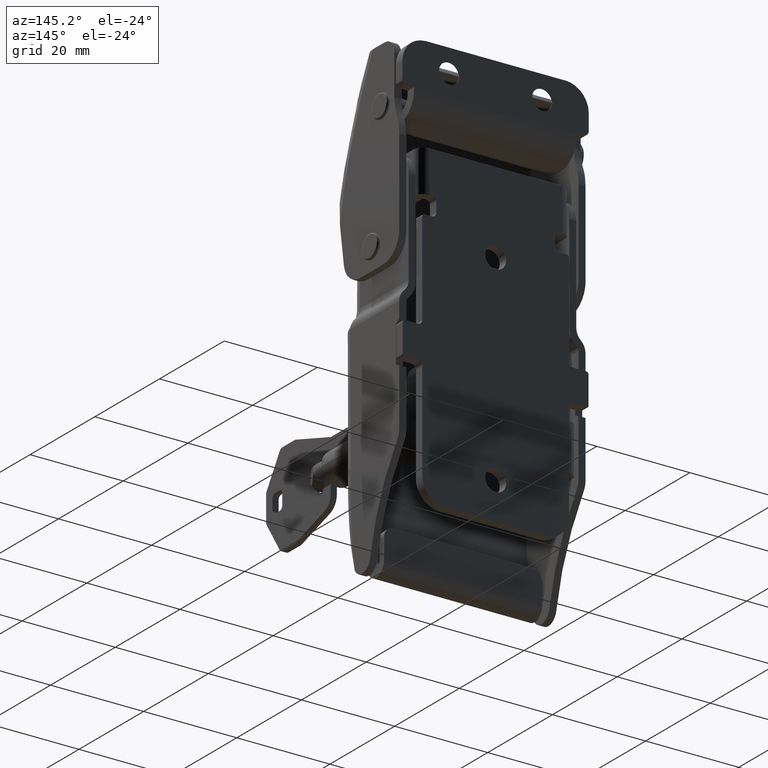
[diagram: clean part render]
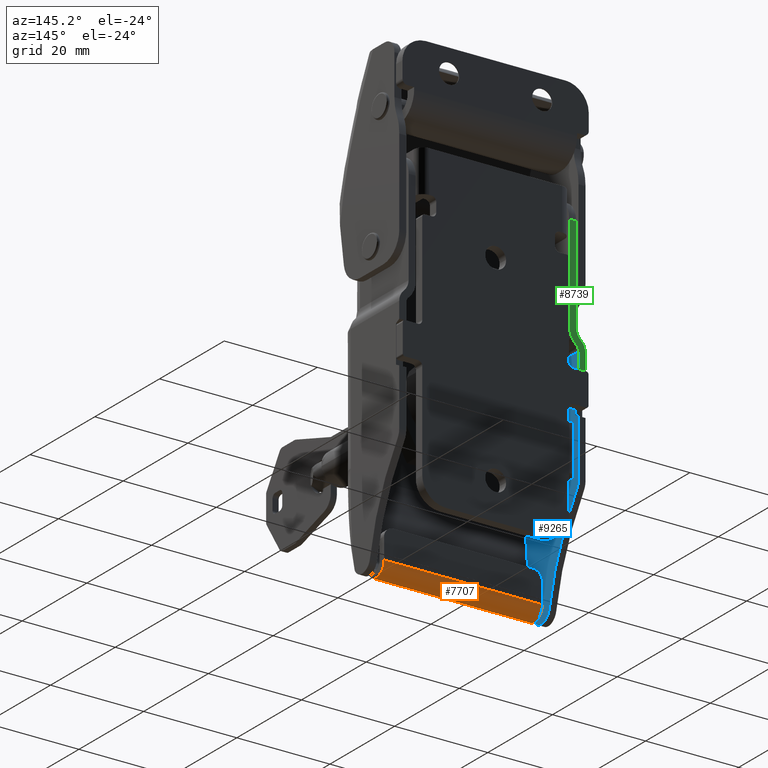
[diagram: same view with three faces highlighted in distinct colors, each labeled with its STEP entity id]
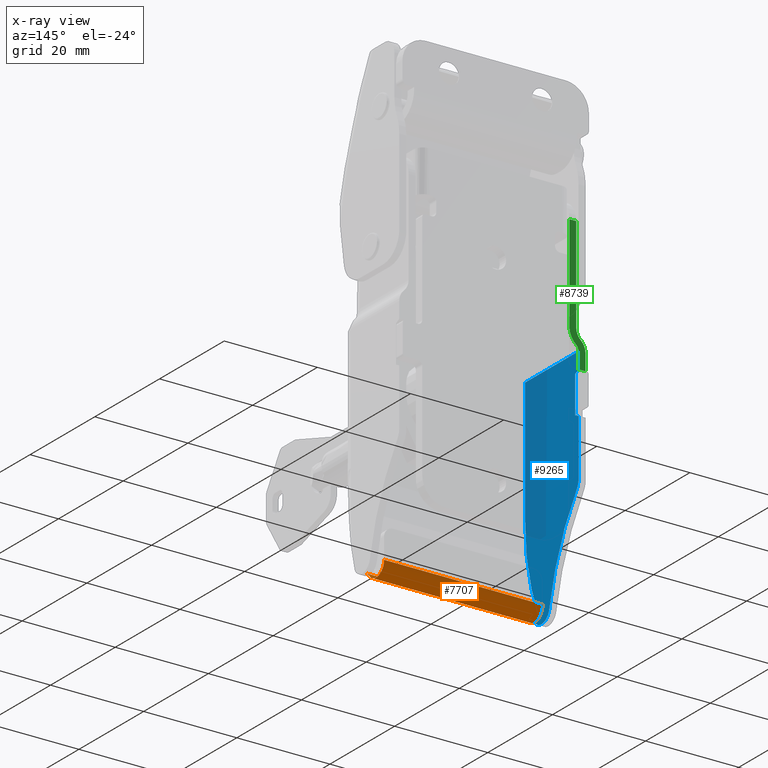
[diagram: x-ray of the same camera — body ghosted, the three highlighted faces saturated]
A machine part, auxiliary view with three faces highlighted in distinct colors.
The next image is the same camera in x-ray (body ghosted, the three faces saturated) — at least one of them is partly hidden behind the body in this view.
Their STEP definitions:

[orange] entity #7707 — the highlighted face is a freeform B-spline surface patch.
#7329=CARTESIAN_POINT('',(-17.000000000143551,-14.382774739631101,-60.644736842516998));
#7330=VERTEX_POINT('',#7329);
#7336=CARTESIAN_POINT('',(-17.750000000143501,-14.789473684203299,-60.004146528219202));
#7337=VERTEX_POINT('',#7336);
#7338=CARTESIAN_POINT('',(-17.750000000143501,-14.789473684203299,-60.004146528219202));
#7339=CARTESIAN_POINT('',(-17.700010502439479,-14.789473684203299,-60.004146528219209));
#7340=CARTESIAN_POINT('',(-17.650862937532331,-14.787499029034230,-60.008683390078772));
#7341=CARTESIAN_POINT('',(-17.578353291951991,-14.781580149753021,-60.021966495622877));
#7342=CARTESIAN_POINT('',(-17.554386889594401,-14.779108492951540,-60.027481043768823));
#7343=CARTESIAN_POINT('',(-17.506870771511391,-14.773096215954141,-60.040714375308639));
#7344=CARTESIAN_POINT('',(-17.483275664032661,-14.769540361863211,-60.048464682536043));
#7345=CARTESIAN_POINT('',(-17.414682998118568,-14.757396264132160,-60.074489964037653));
#7346=CARTESIAN_POINT('',(-17.371332085468900,-14.747297629812270,-60.095637245426019));
#7347=CARTESIAN_POINT('',(-17.309855173765001,-14.728672622249469,-60.132788703223142));
#7348=CARTESIAN_POINT('',(-17.289868344688820,-14.721843839985580,-60.146151934378338));
#7349=CARTESIAN_POINT('',(-17.251571759278828,-14.707041536592850,-60.174402810682267));
#7350=CARTESIAN_POINT('',(-17.233368236403610,-14.699117887573880,-60.189197232703130));
#7351=CARTESIAN_POINT('',(-17.181506976922179,-14.673685447005910,-60.235447182819051));
#7352=CARTESIAN_POINT('',(-17.150573620863671,-14.654531977920760,-60.268753463629977));
#7353=CARTESIAN_POINT('',(-17.109762451615879,-14.621854305952411,-60.322183857848273));
#7354=CARTESIAN_POINT('',(-17.097185167455919,-14.610354000038599,-60.340480752742756));
#7355=CARTESIAN_POINT('',(-17.074439107919002,-14.586470296703039,-60.377361374135063));
#7356=CARTESIAN_POINT('',(-17.053963822422780,-14.561596680458781,-60.414705135986203));
#7357=CARTESIAN_POINT('',(-17.037924701759831,-14.534644873769279,-60.452855050785779));
#7358=CARTESIAN_POINT('',(-17.024108666629878,-14.506588201923670,-60.491365598665233));
#7359=CARTESIAN_POINT('',(-17.018299987781781,-14.491941659208530,-60.510882673690013));
#7360=CARTESIAN_POINT('',(-17.004506663559329,-14.447036575532239,-60.568897918710221));
#7361=CARTESIAN_POINT('',(-17.000000000143501,-14.415657338983710,-60.607095241836703));
#7362=CARTESIAN_POINT('',(-17.000000000143501,-14.382774739631101,-60.644736842516998));
#7363=B_SPLINE_CURVE_WITH_KNOTS('',3,(#7338,#7339,#7340,#7341,#7342,#7343,#7344,#7345,#7346,#7347,#7348,#7349,#7350,#7351,#7352,#7353,#7354,#7355,#7356,#7357,#7358,#7359,#7360,#7361,#7362),.UNSPECIFIED.,.F.,.U.,(4,2,2,2,2,2,2,2,2,1,2,2,4),(0.0,0.124999999999994,0.187499999999997,0.250000000000000,0.375000000000014,0.437500000000013,0.500000000000013,0.625000000000007,0.687500000000006,0.750000000000005,0.812500000000005,0.875000000000004,1.0),.UNSPECIFIED.);
#7364=EDGE_CURVE('',#7337,#7330,#7363,.T.);
#7416=CARTESIAN_POINT('',(16.999999999856449,-14.382774739631101,-60.644736842516998));
#7417=VERTEX_POINT('',#7416);
#7488=CARTESIAN_POINT('',(17.749999999880352,-14.789473684203299,-60.004146528219202));
#7489=VERTEX_POINT('',#7488);
#7518=CARTESIAN_POINT('',(16.999999999856449,-14.382774739631101,-60.644736842516998));
#7519=CARTESIAN_POINT('',(16.999999999856449,-14.415647814637820,-60.607106144613027));
#7520=CARTESIAN_POINT('',(17.004505190864080,-14.446873523007500,-60.569086537129493));
#7521=CARTESIAN_POINT('',(17.018106369824611,-14.491388773420960,-60.511607760925230));
#7522=CARTESIAN_POINT('',(17.023787640758840,-14.505839016437280,-60.492373933309722));
#7523=CARTESIAN_POINT('',(17.037550445870771,-14.533977349369099,-60.453790307749237));
#7524=CARTESIAN_POINT('',(17.045665010242519,-14.547685317914800,-60.434404056637348));
#7525=CARTESIAN_POINT('',(17.073137935038631,-14.586793764759010,-60.377465939858240));
#7526=CARTESIAN_POINT('',(17.095729048254210,-14.610519012939699,-60.340682923776782));
#7527=CARTESIAN_POINT('',(17.136125958832618,-14.643011107810610,-60.287607740766887));
#7528=CARTESIAN_POINT('',(17.150762968057109,-14.653371264415130,-60.270185035889291));
#7529=CARTESIAN_POINT('',(17.181940236906470,-14.672861382514141,-60.236548114776269));
#7530=CARTESIAN_POINT('',(17.198385488070191,-14.681946215218330,-60.220418359370058));
#7531=CARTESIAN_POINT('',(17.250223896211640,-14.707415914140499,-60.174119249060134));
#7532=CARTESIAN_POINT('',(17.288095809037848,-14.722031554062310,-60.146019293507109));
#7533=CARTESIAN_POINT('',(17.370683160026250,-14.747148776411841,-60.095950192740688));
#7534=CARTESIAN_POINT('',(17.414339868666460,-14.757313817235319,-60.074662041040590));
#7535=CARTESIAN_POINT('',(17.482539487720310,-14.769420657828450,-60.048723472333450));
#7536=CARTESIAN_POINT('',(17.505765764893301,-14.772938060238809,-60.041059970817301));
#7537=CARTESIAN_POINT('',(17.553224598230749,-14.778978909222490,-60.027768660656839));
#7538=CARTESIAN_POINT('',(17.577537449056560,-14.781504602627621,-60.022135435109313));
#7539=CARTESIAN_POINT('',(17.650652724182400,-14.787499437261321,-60.008683657129197));
#7540=CARTESIAN_POINT('',(17.700013040232200,-14.789473684203260,-60.004146528219309));
#7541=CARTESIAN_POINT('',(17.749999999880352,-14.789473684203299,-60.004146528219202));
#7542=B_SPLINE_CURVE_WITH_KNOTS('',3,(#7518,#7519,#7520,#7521,#7522,#7523,#7524,#7525,#7526,#7527,#7528,#7529,#7530,#7531,#7532,#7533,#7534,#7535,#7536,#7537,#7538,#7539,#7540,#7541),.UNSPECIFIED.,.F.,.U.,(4,2,2,2,2,2,2,2,2,2,2,4),(0.0,0.124999999999995,0.187499999999992,0.249999999999990,0.374999999999998,0.437500000000002,0.500000000000006,0.625000000000003,0.750000000000000,0.812500000000002,0.875000000000003,1.0),.UNSPECIFIED.);
#7543=EDGE_CURVE('',#7417,#7489,#7542,.T.);
#7641=CARTESIAN_POINT('',(-18.637500000144090,-10.001812528519020,-58.904819343925467));
#7642=CARTESIAN_POINT('',(18.659687499880960,-10.001812528519020,-58.904819343925467));
#7643=CARTESIAN_POINT('',(-18.637500000144101,-9.919799627913465,-61.057395385716667));
#7644=CARTESIAN_POINT('',(18.659687499880953,-9.919799627913465,-61.057395385716667));
#7645=CARTESIAN_POINT('',(-18.637500000144090,-12.036609201794210,-61.456678442564737));
#7646=CARTESIAN_POINT('',(18.659687499880960,-12.036609201794210,-61.456678442564737));
#7647=CARTESIAN_POINT('',(-18.637500000144101,-14.153418775674965,-61.855961499412821));
#7648=CARTESIAN_POINT('',(18.659687499880953,-14.153418775674965,-61.855961499412821));
#7649=CARTESIAN_POINT('',(-18.637500000144090,-14.861200429458201,-59.821421044635130));
#7650=CARTESIAN_POINT('',(18.659687499880960,-14.861200429458201,-59.821421044635130));
#7658=(BOUNDED_SURFACE()B_SPLINE_SURFACE(1,2,((#7641,#7643,#7645,#7647,#7649),(#7642,#7644,#7646,#7648,#7650)),.UNSPECIFIED.,.F.,.F.,.U.)B_SPLINE_SURFACE_WITH_KNOTS((2,2),(3,2,3),(0.0,37.297187500025053),(0.0,3.714000667187200,7.428001334374400),.UNSPECIFIED.)GEOMETRIC_REPRESENTATION_ITEM()RATIONAL_B_SPLINE_SURFACE(((1.0,0.757564984384050,1.0,0.757564984384050,1.0),(1.0,0.757564984384050,1.0,0.757564984384050,1.0)))REPRESENTATION_ITEM('')SURFACE());
#7659=CARTESIAN_POINT('',(16.999999999856449,-9.999999999993289,-59.000000000410687));
#7660=VERTEX_POINT('',#7659);
#7661=CARTESIAN_POINT('',(16.999999999856449,-9.999999999993300,-59.000000000410687));
#7662=CARTESIAN_POINT('',(16.999999999856456,-9.999999999993300,-60.732058456661754));
#7663=CARTESIAN_POINT('',(16.999999999856449,-11.621631298676620,-61.340612831390487));
#7664=CARTESIAN_POINT('',(16.999999999856456,-13.243262597359935,-61.949167206119220));
#7665=CARTESIAN_POINT('',(16.999999999856449,-14.382774739631101,-60.644736842516998));
#7673=(BOUNDED_CURVE()B_SPLINE_CURVE(2,(#7661,#7662,#7663,#7664,#7665),.UNSPECIFIED.,.F.,.U.)B_SPLINE_CURVE_WITH_KNOTS((3,2,3),(0.0,0.500000000000000,1.0),.UNSPECIFIED.)CURVE()GEOMETRIC_REPRESENTATION_ITEM()RATIONAL_B_SPLINE_CURVE((1.0,0.821993759260577,1.0,0.821993759260577,1.0))REPRESENTATION_ITEM(''));
#7674=EDGE_CURVE('',#7660,#7417,#7673,.T.);
#7675=ORIENTED_EDGE('',*,*,#7674,.T.);
#7676=ORIENTED_EDGE('',*,*,#7543,.T.);
#7677=CARTESIAN_POINT('',(-17.750000000143501,-14.789473684203299,-60.004146528219202));
#7678=CARTESIAN_POINT('',(17.749999999880352,-14.789473684203299,-60.004146528219202));
#7679=QUASI_UNIFORM_CURVE('',1,(#7677,#7678),.UNSPECIFIED.,.F.,.U.);
#7680=EDGE_CURVE('',#7337,#7489,#7679,.T.);
#7681=ORIENTED_EDGE('',*,*,#7680,.F.);
#7682=ORIENTED_EDGE('',*,*,#7364,.T.);
#7683=CARTESIAN_POINT('',(-17.000000000143551,-9.999999999993289,-59.000000000410687));
#7684=VERTEX_POINT('',#7683);
#7685=CARTESIAN_POINT('',(-17.000000000143551,-9.999999999993300,-59.000000000410687));
#7686=CARTESIAN_POINT('',(-17.000000000143547,-9.999999999993300,-60.732058456661754));
#7687=CARTESIAN_POINT('',(-17.000000000143551,-11.621631298676620,-61.340612831390487));
#7688=CARTESIAN_POINT('',(-17.000000000143547,-13.243262597359935,-61.949167206119220));
#7689=CARTESIAN_POINT('',(-17.000000000143551,-14.382774739631101,-60.644736842516998));
#7697=(BOUNDED_CURVE()B_SPLINE_CURVE(2,(#7685,#7686,#7687,#7688,#7689),.UNSPECIFIED.,.F.,.U.)B_SPLINE_CURVE_WITH_KNOTS((3,2,3),(0.0,0.500000000000000,1.0),.UNSPECIFIED.)CURVE()GEOMETRIC_REPRESENTATION_ITEM()RATIONAL_B_SPLINE_CURVE((1.0,0.821993759260577,1.0,0.821993759260577,1.0))REPRESENTATION_ITEM(''));
#7698=EDGE_CURVE('',#7684,#7330,#7697,.T.);
#7699=ORIENTED_EDGE('',*,*,#7698,.F.);
#7700=CARTESIAN_POINT('',(-17.000000000143551,-9.999999999993289,-59.000000000410687));
#7701=CARTESIAN_POINT('',(16.999999999856449,-9.999999999993289,-59.000000000410687));
#7702=QUASI_UNIFORM_CURVE('',1,(#7700,#7701),.UNSPECIFIED.,.F.,.U.);
#7703=EDGE_CURVE('',#7684,#7660,#7702,.T.);
#7704=ORIENTED_EDGE('',*,*,#7703,.T.);
#7705=EDGE_LOOP('',(#7675,#7676,#7681,#7682,#7699,#7704));
#7706=FACE_OUTER_BOUND('',#7705,.T.);
#7707=ADVANCED_FACE('',(#7706),#7658,.T.);

[blue] entity #9265 — the highlighted face is a freeform B-spline surface patch.
#7265=CARTESIAN_POINT('',(-18.500000000068251,-13.109234562975720,-60.086171371669693));
#7266=VERTEX_POINT('',#7265);
#7267=CARTESIAN_POINT('',(-18.500000000068251,-14.382774739631101,-60.644736842516998));
#7268=VERTEX_POINT('',#7267);
#7269=CARTESIAN_POINT('',(-18.500000000068251,-13.109234562975720,-60.086171371669693));
#7270=CARTESIAN_POINT('',(-18.500000000068251,-14.382774739631101,-60.644736842516998));
#7271=QUASI_UNIFORM_CURVE('',1,(#7269,#7270),.UNSPECIFIED.,.F.,.U.);
#7272=EDGE_CURVE('',#7266,#7268,#7271,.T.);
#7963=CARTESIAN_POINT('',(-18.500000000031651,-1.000000000003110,-13.018624220187380));
#7964=VERTEX_POINT('',#7963);
#7965=CARTESIAN_POINT('',(-18.500000000031651,-17.500000000002949,-13.018624220186140));
#7966=VERTEX_POINT('',#7965);
#7967=CARTESIAN_POINT('',(-18.500000000031651,-1.000000000003110,-13.018624220187380));
#7968=CARTESIAN_POINT('',(-18.500000000031651,-17.500000000002949,-13.018624220186140));
#7969=QUASI_UNIFORM_CURVE('',1,(#7967,#7968),.UNSPECIFIED.,.F.,.U.);
#7970=EDGE_CURVE('',#7964,#7966,#7969,.T.);
#8018=CARTESIAN_POINT('',(-18.500000000068251,-17.500000000003201,-39.921215972049502));
#8019=VERTEX_POINT('',#8018);
#8041=CARTESIAN_POINT('',(-18.500000000068251,-13.109234562975709,-60.086171371669693));
#8042=CARTESIAN_POINT('',(-18.500000000068248,-17.500000000003208,-50.481721536065990));
#8043=CARTESIAN_POINT('',(-18.500000000068251,-17.500000000003212,-39.921215972049502));
#8051=(BOUNDED_CURVE()B_SPLINE_CURVE(2,(#8041,#8042,#8043),.UNSPECIFIED.,.F.,.U.)CURVE()GEOMETRIC_REPRESENTATION_ITEM()QUASI_UNIFORM_CURVE()RATIONAL_B_SPLINE_CURVE((1.0,0.977105100251688,1.0))REPRESENTATION_ITEM(''));
#8052=EDGE_CURVE('',#7266,#8019,#8051,.T.);
#8278=CARTESIAN_POINT('',(-18.500000000068251,-10.041072328296760,-59.451303341152602));
#8279=VERTEX_POINT('',#8278);
#8280=CARTESIAN_POINT('',(-18.500000000068251,-10.041072328296710,-59.451303341152610));
#8281=CARTESIAN_POINT('',(-18.500000000068248,-10.324340044626545,-60.994688384650523));
#8282=CARTESIAN_POINT('',(-18.500000000068251,-11.837384779201701,-61.410589361785902));
#8283=CARTESIAN_POINT('',(-18.500000000068248,-13.350429513776852,-61.826490338921268));
#8284=CARTESIAN_POINT('',(-18.500000000068251,-14.382774739631101,-60.644736842516998));
#8292=(BOUNDED_CURVE()B_SPLINE_CURVE(2,(#8280,#8281,#8282,#8283,#8284),.UNSPECIFIED.,.F.,.U.)B_SPLINE_CURVE_WITH_KNOTS((3,2,3),(0.0,0.500000000000000,1.0),.UNSPECIFIED.)CURVE()GEOMETRIC_REPRESENTATION_ITEM()RATIONAL_B_SPLINE_CURVE((1.0,0.846981932937762,1.0,0.846981932937762,1.0))REPRESENTATION_ITEM(''));
#8293=EDGE_CURVE('',#8279,#7268,#8292,.T.);
#8336=CARTESIAN_POINT('',(-18.500000000068251,-1.558255786476180,-39.428153319590500));
#8337=VERTEX_POINT('',#8336);
#8345=CARTESIAN_POINT('',(-18.500000000068251,-10.041072328296760,-59.451303341152617));
#8346=CARTESIAN_POINT('',(-18.500000000068248,-8.030149190184300,-48.494782297384369));
#8347=CARTESIAN_POINT('',(-18.500000000068251,-1.558255786476268,-39.428153319590400));
#8355=(BOUNDED_CURVE()B_SPLINE_CURVE(2,(#8345,#8346,#8347),.UNSPECIFIED.,.F.,.U.)CURVE()GEOMETRIC_REPRESENTATION_ITEM()QUASI_UNIFORM_CURVE()RATIONAL_B_SPLINE_CURVE((1.0,0.976069428203334,1.0))REPRESENTATION_ITEM(''));
#8356=EDGE_CURVE('',#8279,#8337,#8355,.T.);
#8389=CARTESIAN_POINT('',(-18.500000000068251,-1.000000000002900,-37.685200309406603));
#8390=VERTEX_POINT('',#8389);
#8391=CARTESIAN_POINT('',(-18.500000000068251,-1.000000000002900,-37.685200309406703));
#8392=CARTESIAN_POINT('',(-18.500000000068255,-1.000000000002900,-38.646079546904467));
#8393=CARTESIAN_POINT('',(-18.500000000068251,-1.558255786476180,-39.428153319590500));
#8401=(BOUNDED_CURVE()B_SPLINE_CURVE(2,(#8391,#8392,#8393),.UNSPECIFIED.,.F.,.U.)CURVE()GEOMETRIC_REPRESENTATION_ITEM()QUASI_UNIFORM_CURVE()RATIONAL_B_SPLINE_CURVE((1.0,0.952343094121609,1.0))REPRESENTATION_ITEM(''));
#8402=EDGE_CURVE('',#8390,#8337,#8401,.T.);
#8433=CARTESIAN_POINT('',(-18.500000000068251,-1.000000000003212,-25.500000000312401));
#8434=VERTEX_POINT('',#8433);
#8435=CARTESIAN_POINT('',(-18.500000000068251,-1.000000000003212,-25.500000000312401));
#8436=CARTESIAN_POINT('',(-18.500000000068251,-1.000000000002900,-37.685200309406603));
#8437=QUASI_UNIFORM_CURVE('',1,(#8435,#8436),.UNSPECIFIED.,.F.,.U.);
#8438=EDGE_CURVE('',#8434,#8390,#8437,.T.);
#8461=CARTESIAN_POINT('',(-18.500000000068251,-2.000000000002900,-25.000000000312699));
#8462=VERTEX_POINT('',#8461);
#8463=CARTESIAN_POINT('',(-18.500000000068251,-2.000000000002900,-25.000000000312699));
#8464=CARTESIAN_POINT('',(-18.500000000068251,-1.000000000003212,-25.500000000312401));
#8465=QUASI_UNIFORM_CURVE('',1,(#8463,#8464),.UNSPECIFIED.,.F.,.U.);
#8466=EDGE_CURVE('',#8462,#8434,#8465,.T.);
#8489=CARTESIAN_POINT('',(-18.500000000068251,-2.000000000003100,-17.000000000414101));
#8490=VERTEX_POINT('',#8489);
#8491=CARTESIAN_POINT('',(-18.500000000068251,-2.000000000003100,-17.000000000414101));
#8492=CARTESIAN_POINT('',(-18.500000000068251,-2.000000000002900,-25.000000000312699));
#8493=QUASI_UNIFORM_CURVE('',1,(#8491,#8492),.UNSPECIFIED.,.F.,.U.);
#8494=EDGE_CURVE('',#8490,#8462,#8493,.T.);
#8517=CARTESIAN_POINT('',(-18.500000000068251,-1.000000000003098,-16.500000000414200));
#8518=VERTEX_POINT('',#8517);
#8519=CARTESIAN_POINT('',(-18.500000000068251,-1.000000000003098,-16.500000000414200));
#8520=CARTESIAN_POINT('',(-18.500000000068251,-2.000000000003100,-17.000000000414101));
#8521=QUASI_UNIFORM_CURVE('',1,(#8519,#8520),.UNSPECIFIED.,.F.,.U.);
#8522=EDGE_CURVE('',#8518,#8490,#8521,.T.);
#8707=CARTESIAN_POINT('',(-18.500000000031651,-1.000000000003110,-13.018624220187380));
#8708=CARTESIAN_POINT('',(-18.500000000068251,-1.000000000003098,-16.500000000414200));
#8709=QUASI_UNIFORM_CURVE('',1,(#8707,#8708),.UNSPECIFIED.,.F.,.U.);
#8710=EDGE_CURVE('',#7964,#8518,#8709,.T.);
#9242=CARTESIAN_POINT('',(-18.500000000068251,-0.175825031983087,-10.597038425688430));
#9243=CARTESIAN_POINT('',(-18.500000000068258,-18.324175410587500,-10.597038425688430));
#9244=CARTESIAN_POINT('',(-18.500000000068251,-0.175825031983087,-63.920409282144178));
#9245=CARTESIAN_POINT('',(-18.500000000068258,-18.324175410587500,-63.920409282144178));
#9246=B_SPLINE_SURFACE_WITH_KNOTS('',1,1,((#9242,#9244),(#9243,#9245)),.UNSPECIFIED.,.F.,.F.,.U.,(2,2),(2,2),(0.0,18.148350378604409),(0.0,53.323370856455753),.UNSPECIFIED.);
#9247=ORIENTED_EDGE('',*,*,#8052,.F.);
#9248=ORIENTED_EDGE('',*,*,#7272,.T.);
#9249=ORIENTED_EDGE('',*,*,#8293,.F.);
#9250=ORIENTED_EDGE('',*,*,#8356,.T.);
#9251=ORIENTED_EDGE('',*,*,#8402,.F.);
#9252=ORIENTED_EDGE('',*,*,#8438,.F.);
#9253=ORIENTED_EDGE('',*,*,#8466,.F.);
#9254=ORIENTED_EDGE('',*,*,#8494,.F.);
#9255=ORIENTED_EDGE('',*,*,#8522,.F.);
#9256=ORIENTED_EDGE('',*,*,#8710,.F.);
#9257=ORIENTED_EDGE('',*,*,#7970,.T.);
#9258=CARTESIAN_POINT('',(-18.500000000068251,-17.500000000003201,-39.921215972049502));
#9259=CARTESIAN_POINT('',(-18.500000000031651,-17.500000000002949,-13.018624220186140));
#9260=QUASI_UNIFORM_CURVE('',1,(#9258,#9259),.UNSPECIFIED.,.F.,.U.);
#9261=EDGE_CURVE('',#8019,#7966,#9260,.T.);
#9262=ORIENTED_EDGE('',*,*,#9261,.F.);
#9263=EDGE_LOOP('',(#9247,#9248,#9249,#9250,#9251,#9252,#9253,#9254,#9255,#9256,#9257,#9262));
#9264=FACE_OUTER_BOUND('',#9263,.T.);
#9265=ADVANCED_FACE('',(#9264),#9246,.T.);

[green] entity #8739 — the highlighted face is a freeform B-spline surface patch.
#7902=CARTESIAN_POINT('',(-16.500000000030301,-1.000000000003110,-8.546488265193421));
#7903=VERTEX_POINT('',#7902);
#7904=CARTESIAN_POINT('',(-18.000000000029999,-1.000000000003110,-11.900590231436221));
#7905=VERTEX_POINT('',#7904);
#7906=CARTESIAN_POINT('',(-16.500000000030301,-1.000000000003110,-8.546488265193421));
#7907=CARTESIAN_POINT('',(-16.500000000030298,-1.000000000003110,-10.558949444940344));
#7908=CARTESIAN_POINT('',(-18.000000000029999,-1.000000000003110,-11.900590231436221));
#7916=(BOUNDED_CURVE()B_SPLINE_CURVE(2,(#7906,#7907,#7908),.UNSPECIFIED.,.F.,.U.)CURVE()GEOMETRIC_REPRESENTATION_ITEM()QUASI_UNIFORM_CURVE()RATIONAL_B_SPLINE_CURVE((1.0,0.912870929175495,1.0))REPRESENTATION_ITEM(''));
#7917=EDGE_CURVE('',#7903,#7905,#7916,.T.);
#7963=CARTESIAN_POINT('',(-18.500000000031651,-1.000000000003110,-13.018624220187380));
#7964=VERTEX_POINT('',#7963);
#7972=CARTESIAN_POINT('',(-18.500000000031651,-1.000000000003110,-13.018624220187380));
#7973=CARTESIAN_POINT('',(-18.500000000031648,-1.000000000003110,-12.347803826936197));
#7974=CARTESIAN_POINT('',(-18.000000000029999,-1.000000000003110,-11.900590231436221));
#7982=(BOUNDED_CURVE()B_SPLINE_CURVE(2,(#7972,#7973,#7974),.UNSPECIFIED.,.F.,.U.)CURVE()GEOMETRIC_REPRESENTATION_ITEM()QUASI_UNIFORM_CURVE()RATIONAL_B_SPLINE_CURVE((1.0,0.912870929174995,1.0))REPRESENTATION_ITEM(''));
#7983=EDGE_CURVE('',#7964,#7905,#7982,.T.);
#8155=CARTESIAN_POINT('',(-19.000000000028450,-1.000000000003110,-10.782556242684940));
#8156=VERTEX_POINT('',#8155);
#8163=CARTESIAN_POINT('',(-18.000000000030351,-1.000000000003110,-8.546488265189790));
#8164=VERTEX_POINT('',#8163);
#8170=CARTESIAN_POINT('',(-18.000000000030351,-1.000000000003110,-8.546488265189790));
#8171=CARTESIAN_POINT('',(-18.000000000028670,-1.000000000003110,-9.888129051687711));
#8172=CARTESIAN_POINT('',(-19.000000000028450,-1.000000000003110,-10.782556242684940));
#8180=(BOUNDED_CURVE()B_SPLINE_CURVE(2,(#8170,#8171,#8172),.UNSPECIFIED.,.F.,.U.)CURVE()GEOMETRIC_REPRESENTATION_ITEM()QUASI_UNIFORM_CURVE()RATIONAL_B_SPLINE_CURVE((1.0,0.912870929175498,1.0))REPRESENTATION_ITEM(''));
#8181=EDGE_CURVE('',#8164,#8156,#8180,.T.);
#8200=CARTESIAN_POINT('',(-20.000000000068251,-1.000000000003098,-13.018624220187380));
#8201=VERTEX_POINT('',#8200);
#8209=CARTESIAN_POINT('',(-20.000000000068251,-1.000000000003098,-13.018624220187380));
#8210=CARTESIAN_POINT('',(-20.000000000031648,-1.000000000003110,-11.676983433685020));
#8211=CARTESIAN_POINT('',(-19.000000000028450,-1.000000000003110,-10.782556242684940));
#8219=(BOUNDED_CURVE()B_SPLINE_CURVE(2,(#8209,#8210,#8211),.UNSPECIFIED.,.F.,.U.)CURVE()GEOMETRIC_REPRESENTATION_ITEM()QUASI_UNIFORM_CURVE()RATIONAL_B_SPLINE_CURVE((1.0,0.912870929174994,1.0))REPRESENTATION_ITEM(''));
#8220=EDGE_CURVE('',#8201,#8156,#8219,.T.);
#8517=CARTESIAN_POINT('',(-18.500000000068251,-1.000000000003098,-16.500000000414200));
#8518=VERTEX_POINT('',#8517);
#8525=CARTESIAN_POINT('',(-20.000000000068201,-1.000000000003098,-16.500000000414200));
#8526=VERTEX_POINT('',#8525);
#8532=CARTESIAN_POINT('',(-18.500000000068251,-1.000000000003098,-16.500000000414200));
#8533=CARTESIAN_POINT('',(-20.000000000068201,-1.000000000003098,-16.500000000414200));
#8534=QUASI_UNIFORM_CURVE('',1,(#8532,#8533),.UNSPECIFIED.,.F.,.U.);
#8535=EDGE_CURVE('',#8518,#8526,#8534,.T.);
#8549=CARTESIAN_POINT('',(-20.000000000068251,-1.000000000003098,-13.018624220187380));
#8550=CARTESIAN_POINT('',(-20.000000000068201,-1.000000000003098,-16.500000000414200));
#8551=QUASI_UNIFORM_CURVE('',1,(#8549,#8550),.UNSPECIFIED.,.F.,.U.);
#8552=EDGE_CURVE('',#8201,#8526,#8551,.T.);
#8702=CARTESIAN_POINT('',(-20.174824993288951,-1.000000000003098,-17.923574945175680));
#8703=CARTESIAN_POINT('',(-20.174824993288951,-1.000000000003098,13.423575708777030));
#8704=CARTESIAN_POINT('',(-16.325174912882641,-1.000000000003098,-17.923574945175680));
#8705=CARTESIAN_POINT('',(-16.325174912882641,-1.000000000003098,13.423575708777030));
#8706=B_SPLINE_SURFACE_WITH_KNOTS('',1,1,((#8702,#8704),(#8703,#8705)),.UNSPECIFIED.,.F.,.F.,.U.,(2,2),(2,2),(0.0,31.347150653952710),(0.0,3.849650080406306),.UNSPECIFIED.);
#8707=CARTESIAN_POINT('',(-18.500000000031651,-1.000000000003110,-13.018624220187380));
#8708=CARTESIAN_POINT('',(-18.500000000068251,-1.000000000003098,-16.500000000414200));
#8709=QUASI_UNIFORM_CURVE('',1,(#8707,#8708),.UNSPECIFIED.,.F.,.U.);
#8710=EDGE_CURVE('',#7964,#8518,#8709,.T.);
#8711=ORIENTED_EDGE('',*,*,#8710,.T.);
#8712=ORIENTED_EDGE('',*,*,#8535,.T.);
#8713=ORIENTED_EDGE('',*,*,#8552,.F.);
#8714=ORIENTED_EDGE('',*,*,#8220,.T.);
#8715=ORIENTED_EDGE('',*,*,#8181,.F.);
#8716=CARTESIAN_POINT('',(-17.999999999980599,-1.000000000003098,11.999999999585979));
#8717=VERTEX_POINT('',#8716);
#8718=CARTESIAN_POINT('',(-18.000000000030351,-1.000000000003110,-8.546488265189790));
#8719=CARTESIAN_POINT('',(-17.999999999980599,-1.000000000003098,11.999999999585979));
#8720=QUASI_UNIFORM_CURVE('',1,(#8718,#8719),.UNSPECIFIED.,.F.,.U.);
#8721=EDGE_CURVE('',#8164,#8717,#8720,.T.);
#8722=ORIENTED_EDGE('',*,*,#8721,.T.);
#8723=CARTESIAN_POINT('',(-16.499999999980648,-1.000000000003098,11.999999999585979));
#8724=VERTEX_POINT('',#8723);
#8725=CARTESIAN_POINT('',(-16.499999999980648,-1.000000000003098,11.999999999585979));
#8726=CARTESIAN_POINT('',(-17.999999999980599,-1.000000000003098,11.999999999585979));
#8727=QUASI_UNIFORM_CURVE('',1,(#8725,#8726),.UNSPECIFIED.,.F.,.U.);
#8728=EDGE_CURVE('',#8724,#8717,#8727,.T.);
#8729=ORIENTED_EDGE('',*,*,#8728,.F.);
#8730=CARTESIAN_POINT('',(-16.500000000030301,-1.000000000003110,-8.546488265193421));
#8731=CARTESIAN_POINT('',(-16.499999999980648,-1.000000000003098,11.999999999585979));
#8732=QUASI_UNIFORM_CURVE('',1,(#8730,#8731),.UNSPECIFIED.,.F.,.U.);
#8733=EDGE_CURVE('',#7903,#8724,#8732,.T.);
#8734=ORIENTED_EDGE('',*,*,#8733,.F.);
#8735=ORIENTED_EDGE('',*,*,#7917,.T.);
#8736=ORIENTED_EDGE('',*,*,#7983,.F.);
#8737=EDGE_LOOP('',(#8711,#8712,#8713,#8714,#8715,#8722,#8729,#8734,#8735,#8736));
#8738=FACE_OUTER_BOUND('',#8737,.T.);
#8739=ADVANCED_FACE('',(#8738),#8706,.T.);